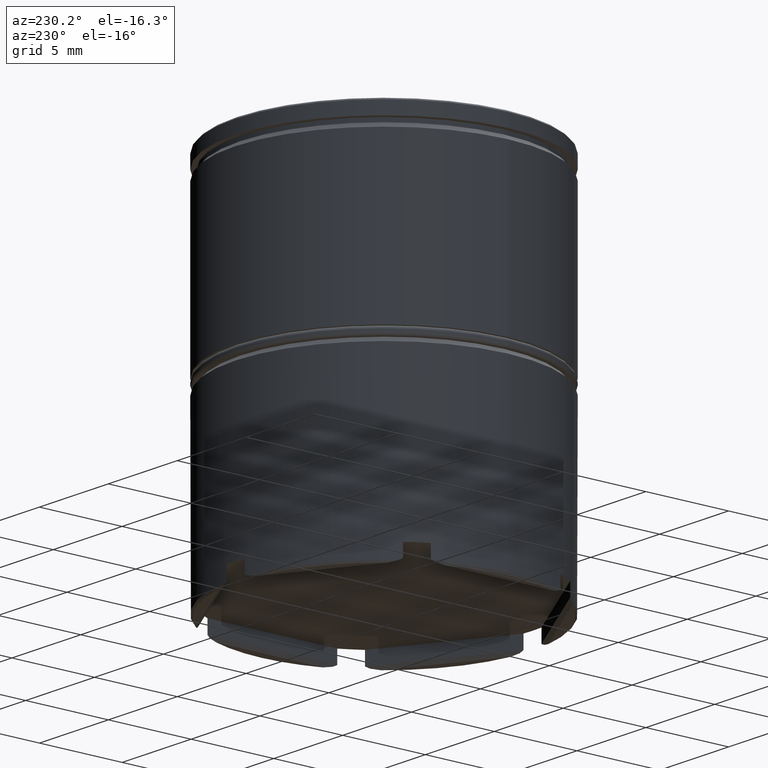
[diagram: clean part render]
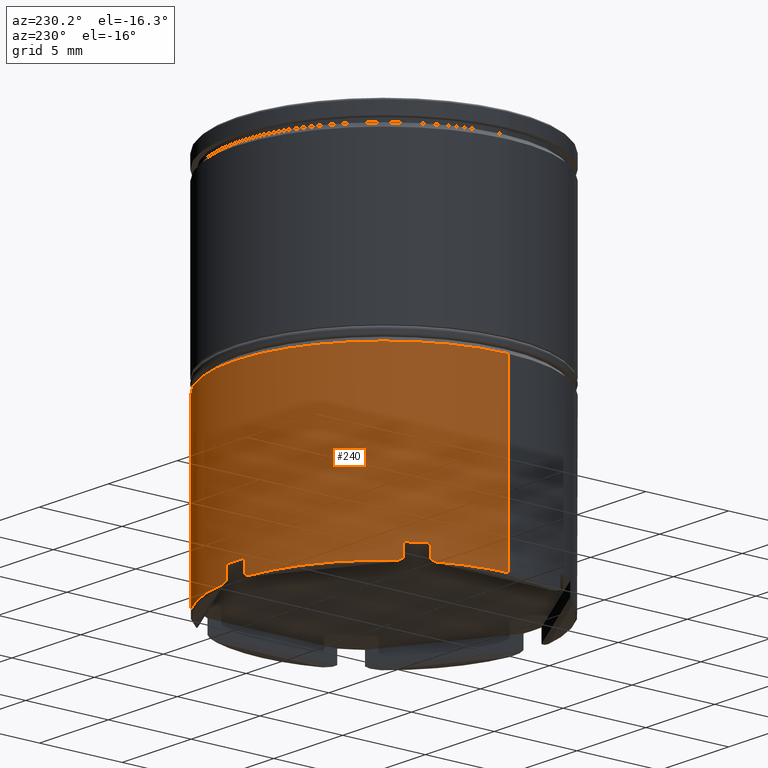
[diagram: same view with one face highlighted and labeled with its STEP entity id]
A machine part, auxiliary view. The second image highlights one B-rep face of the part: STEP entity #240.
In plain terms, the highlighted cylindrical surface (partial cylindrical patch) has radius 9 mm, axis along (-0, -0, 1).
Its self-contained STEP definition (entity closure, byte-faithful):
#3 = LINE ( 'NONE', #999, #1129 ) ;
#15 = LINE ( 'NONE', #1019, #1394 ) ;
#37 = LINE ( 'NONE', #1557, #1393 ) ;
#38 = CARTESIAN_POINT ( 'NONE',  ( -7.447425495871833334, 5.053301246060654783, 0.000000000000000000 ) ) ;
#41 = EDGE_CURVE ( 'NONE', #1512, #1438, #297, .T. ) ;
#42 = CARTESIAN_POINT ( 'NONE',  ( 8.167600284359950891, 3.781069297561905351, -22.36760028435994840 ) ) ;
#60 = CARTESIAN_POINT ( 'NONE',  ( 7.447425495871836887, 5.053301246060648566, -21.50000000000000000 ) ) ;
#67 = DIRECTION ( 'NONE',  ( -1.000000000000000000, 1.421085471520200372E-14, 0.000000000000000000 ) ) ;
#72 = VERTEX_POINT ( 'NONE', #783 ) ;
#81 = DIRECTION ( 'NONE',  ( -0.000000000000000000, -0.000000000000000000, 1.000000000000000000 ) ) ;
#92 = CARTESIAN_POINT ( 'NONE',  ( 0.000000000000000000, 0.000000000000000000, -22.40000000000000213 ) ) ;
#94 = EDGE_CURVE ( 'NONE', #1512, #1083, #943, .T. ) ;
#99 = DIRECTION ( 'NONE',  ( -1.000000000000000000, 0.000000000000000000, 0.000000000000000000 ) ) ;
#112 = ORIENTED_EDGE ( 'NONE', *, *, #1070, .T. ) ;
#127 = AXIS2_PLACEMENT_3D ( 'NONE', #575, #463, #1574 ) ;
#128 = CARTESIAN_POINT ( 'NONE',  ( 9.000000000000000000, 0.000000000000000000, -11.80000000000000249 ) ) ;
#133 = CARTESIAN_POINT ( 'NONE',  ( -0.6525745041281640901, 8.976310295247255766, -22.29999999999999361 ) ) ;
#139 = EDGE_CURVE ( 'NONE', #457, #959, #980, .T. ) ;
#145 = CARTESIAN_POINT ( 'NONE',  ( 8.199999999999999289, 3.709447398198280066, -22.40000000000000213 ) ) ;
#153 = CARTESIAN_POINT ( 'NONE',  ( 0.000000000000000000, 0.000000000000000000, 0.000000000000000000 ) ) ;
#154 = AXIS2_PLACEMENT_3D ( 'NONE', #424, #545, #171 ) ;
#155 = CIRCLE ( 'NONE', #1076, 9.000000000000000000 ) ;
#158 = EDGE_CURVE ( 'NONE', #457, #872, #155, .T. ) ;
#169 = EDGE_CURVE ( 'NONE', #867, #1595, #175, .T. ) ;
#171 = DIRECTION ( 'NONE',  ( -1.000000000000000000, -2.664535259100375303E-15, 0.000000000000000000 ) ) ;
#175 = CIRCLE ( 'NONE', #1051, 9.000000000000000000 ) ;
#181 = EDGE_CURVE ( 'NONE', #1074, #1083, #336, .T. ) ;
#184 = CARTESIAN_POINT ( 'NONE',  ( -7.358302207337953149, 5.182814685431787360, -22.36760028435994840 ) ) ;
#201 = VECTOR ( 'NONE', #756, 1000.000000000000000 ) ;
#228 = CARTESIAN_POINT ( 'NONE',  ( 7.403288052786542117, 5.118349875253747960, -22.33426504381993993 ) ) ;
#238 = CARTESIAN_POINT ( 'NONE',  ( -8.100000000000003197, 3.923009049186599206, -22.29999999999999716 ) ) ;
#240 = ADVANCED_FACE ( 'NONE', ( #255 ), #246, .T. ) ;
#243 = CARTESIAN_POINT ( 'NONE',  ( -0.6525745041281640901, 8.976310295247255766, 0.000000000000000000 ) ) ;
#246 = CYLINDRICAL_SURFACE ( 'NONE', #918, 9.000000000000000000 ) ;
#255 = FACE_OUTER_BOUND ( 'NONE', #1319, .T. ) ;
#257 = CARTESIAN_POINT ( 'NONE',  ( 8.100000000000001421, 3.923009049186602759, -22.30000000000000782 ) ) ;
#265 = ORIENTED_EDGE ( 'NONE', *, *, #772, .T. ) ;
#267 = CARTESIAN_POINT ( 'NONE',  ( 0.6525745041281636460, 8.976310295247255766, -21.50000000000000000 ) ) ;
#268 = VERTEX_POINT ( 'NONE', #543 ) ;
#279 = DIRECTION ( 'NONE',  ( -0.000000000000000000, -0.000000000000000000, 1.000000000000000000 ) ) ;
#281 = DIRECTION ( 'NONE',  ( 1.000000000000000000, 0.000000000000000000, 0.000000000000000000 ) ) ;
#290 =( BOUNDED_CURVE ( )  B_SPLINE_CURVE ( 3, ( #238, #1125, #503, #769 ),
 .UNSPECIFIED., .F., .T. ) 
 B_SPLINE_CURVE_WITH_KNOTS ( ( 4, 4 ),
 ( 2.690565841793531643, 2.716768226110907847 ),
 .UNSPECIFIED. ) 
 CURVE ( )  GEOMETRIC_REPRESENTATION_ITEM ( )  RATIONAL_B_SPLINE_CURVE ( ( 1.000000000000000000, 0.9999427870730221990, 0.9999427870730221990, 1.000000000000000000 ) ) 
 REPRESENTATION_ITEM ( '' )  );
#292 = EDGE_CURVE ( 'NONE', #1595, #959, #646, .T. ) ;
#297 = LINE ( 'NONE', #38, #360 ) ;
#298 = ORIENTED_EDGE ( 'NONE', *, *, #139, .F. ) ;
#299 = EDGE_CURVE ( 'NONE', #867, #459, #15, .T. ) ;
#303 =( BOUNDED_CURVE ( )  B_SPLINE_CURVE ( 3, ( #460, #184, #1594, #589 ),
 .UNSPECIFIED., .F., .T. ) 
 B_SPLINE_CURVE_WITH_KNOTS ( ( 4, 4 ),
 ( 3.566417081068677941, 3.592619465386055033 ),
 .UNSPECIFIED. ) 
 CURVE ( )  GEOMETRIC_REPRESENTATION_ITEM ( )  RATIONAL_B_SPLINE_CURVE ( ( 1.000000000000000000, 0.9999427870730221990, 0.9999427870730221990, 1.000000000000000000 ) ) 
 REPRESENTATION_ITEM ( '' )  );
#307 = DIRECTION ( 'NONE',  ( -0.000000000000000000, -0.000000000000000000, 1.000000000000000000 ) ) ;
#313 = ORIENTED_EDGE ( 'NONE', *, *, #843, .T. ) ;
#314 = CIRCLE ( 'NONE', #542, 9.000000000000000000 ) ;
#327 = AXIS2_PLACEMENT_3D ( 'NONE', #341, #81, #67 ) ;
#328 = AXIS2_PLACEMENT_3D ( 'NONE', #1310, #307, #454 ) ;
#331 = EDGE_CURVE ( 'NONE', #977, #825, #1419, .T. ) ;
#336 = LINE ( 'NONE', #1482, #1104 ) ;
#341 = CARTESIAN_POINT ( 'NONE',  ( 0.000000000000000000, 0.000000000000000000, -21.50000000000000000 ) ) ;
#360 = VECTOR ( 'NONE', #1567, 1000.000000000000000 ) ;
#379 = DIRECTION ( 'NONE',  ( -0.000000000000000000, -0.000000000000000000, 1.000000000000000000 ) ) ;
#389 = CARTESIAN_POINT ( 'NONE',  ( 0.000000000000000000, 0.000000000000000000, -21.50000000000000000 ) ) ;
#405 = CARTESIAN_POINT ( 'NONE',  ( 8.199999999999999289, 3.709447398198280066, -22.40000000000000213 ) ) ;
#424 = CARTESIAN_POINT ( 'NONE',  ( 0.000000000000000000, 0.000000000000000000, -22.40000000000000213 ) ) ;
#447 = CARTESIAN_POINT ( 'NONE',  ( -0.6525745041281640901, 8.976310295247255766, -22.29999999999999361 ) ) ;
#454 = DIRECTION ( 'NONE',  ( -1.000000000000000000, 0.000000000000000000, 0.000000000000000000 ) ) ;
#457 = VERTEX_POINT ( 'NONE', #494 ) ;
#459 = VERTEX_POINT ( 'NONE', #128 ) ;
#460 = CARTESIAN_POINT ( 'NONE',  ( -7.312475680841782122, 5.246684611933282838, -22.40000000000000213 ) ) ;
#463 = DIRECTION ( 'NONE',  ( -0.000000000000000000, -0.000000000000000000, 1.000000000000000000 ) ) ;
#468 = CIRCLE ( 'NONE', #154, 9.000000000000000000 ) ;
#472 = CARTESIAN_POINT ( 'NONE',  ( -0.8875243191582230518, 8.956132010131536703, -22.40000000000000213 ) ) ;
#488 = ORIENTED_EDGE ( 'NONE', *, *, #331, .T. ) ;
#493 = EDGE_CURVE ( 'NONE', #1074, #268, #290, .T. ) ;
#494 = CARTESIAN_POINT ( 'NONE',  ( 8.100000000000001421, 3.923009049186602759, -21.50000000000000000 ) ) ;
#503 = CARTESIAN_POINT ( 'NONE',  ( -8.167600284359959772, 3.781069297561888476, -22.36760028435994840 ) ) ;
#507 = EDGE_CURVE ( 'NONE', #72, #872, #3, .T. ) ;
#517 = ORIENTED_EDGE ( 'NONE', *, *, #299, .F. ) ;
#542 = AXIS2_PLACEMENT_3D ( 'NONE', #912, #1416, #281 ) ;
#543 = CARTESIAN_POINT ( 'NONE',  ( -8.200000000000009948, 3.709447398198260082, -22.40000000000000213 ) ) ;
#545 = DIRECTION ( 'NONE',  ( -0.000000000000000000, -0.000000000000000000, 1.000000000000000000 ) ) ;
#547 = DIRECTION ( 'NONE',  ( -0.000000000000000000, -0.000000000000000000, 1.000000000000000000 ) ) ;
#575 = CARTESIAN_POINT ( 'NONE',  ( 0.000000000000000000, 0.000000000000000000, -22.40000000000000213 ) ) ;
#588 = VERTEX_POINT ( 'NONE', #1116 ) ;
#589 = CARTESIAN_POINT ( 'NONE',  ( -7.447425495871833334, 5.053301246060654783, -22.29999999999999361 ) ) ;
#595 =( BOUNDED_CURVE ( )  B_SPLINE_CURVE ( 3, ( #732, #762, #1231, #614 ),
 .UNSPECIFIED., .F., .T. ) 
 B_SPLINE_CURVE_WITH_KNOTS ( ( 4, 4 ),
 ( 3.566417081068683270, 3.592619465386055477 ),
 .UNSPECIFIED. ) 
 CURVE ( )  GEOMETRIC_REPRESENTATION_ITEM ( )  RATIONAL_B_SPLINE_CURVE ( ( 1.000000000000000000, 0.9999427870730221990, 0.9999427870730221990, 1.000000000000000000 ) ) 
 REPRESENTATION_ITEM ( '' )  );
#601 = DIRECTION ( 'NONE',  ( -0.000000000000000000, -0.000000000000000000, 1.000000000000000000 ) ) ;
#609 = VERTEX_POINT ( 'NONE', #1383 ) ;
#614 = CARTESIAN_POINT ( 'NONE',  ( 0.6525745041281636460, 8.976310295247255766, -22.30000000000000782 ) ) ;
#646 =( BOUNDED_CURVE ( )  B_SPLINE_CURVE ( 3, ( #405, #42, #1532, #257 ),
 .UNSPECIFIED., .F., .T. ) 
 B_SPLINE_CURVE_WITH_KNOTS ( ( 4, 4 ),
 ( 3.566417081068681494, 3.592619465386055033 ),
 .UNSPECIFIED. ) 
 CURVE ( )  GEOMETRIC_REPRESENTATION_ITEM ( )  RATIONAL_B_SPLINE_CURVE ( ( 1.000000000000000000, 0.9999427870730221990, 0.9999427870730221990, 1.000000000000000000 ) ) 
 REPRESENTATION_ITEM ( '' )  );
#653 = VERTEX_POINT ( 'NONE', #267 ) ;
#694 = VECTOR ( 'NONE', #1117, 1000.000000000000000 ) ;
#709 = CARTESIAN_POINT ( 'NONE',  ( -0.8092980770219935227, 8.963883982993673172, -22.36760028435994840 ) ) ;
#719 = DIRECTION ( 'NONE',  ( -0.000000000000000000, -0.000000000000000000, 1.000000000000000000 ) ) ;
#726 = DIRECTION ( 'NONE',  ( 0.000000000000000000, 0.000000000000000000, -1.000000000000000000 ) ) ;
#729 = VERTEX_POINT ( 'NONE', #1055 ) ;
#732 = CARTESIAN_POINT ( 'NONE',  ( 0.8875243191581826396, 8.956132010131536703, -22.40000000000000213 ) ) ;
#735 = ORIENTED_EDGE ( 'NONE', *, *, #778, .T. ) ;
#756 = DIRECTION ( 'NONE',  ( -0.000000000000000000, -0.000000000000000000, 1.000000000000000000 ) ) ;
#762 = CARTESIAN_POINT ( 'NONE',  ( 0.8092980770219712072, 8.963883982993674948, -22.36760028435995196 ) ) ;
#764 = DIRECTION ( 'NONE',  ( -0.000000000000000000, -0.000000000000000000, 1.000000000000000000 ) ) ;
#769 = CARTESIAN_POINT ( 'NONE',  ( -8.200000000000009948, 3.709447398198260082, -22.40000000000000213 ) ) ;
#772 = EDGE_CURVE ( 'NONE', #776, #609, #1046, .T. ) ;
#776 = VERTEX_POINT ( 'NONE', #1460 ) ;
#778 = EDGE_CURVE ( 'NONE', #653, #588, #993, .T. ) ;
#783 = CARTESIAN_POINT ( 'NONE',  ( 7.447425495871836887, 5.053301246060648566, -22.30000000000000782 ) ) ;
#784 = DIRECTION ( 'NONE',  ( -1.000000000000000000, 0.000000000000000000, 0.000000000000000000 ) ) ;
#803 = CARTESIAN_POINT ( 'NONE',  ( 0.6525745041281636460, 8.976310295247255766, -22.30000000000000782 ) ) ;
#825 = VERTEX_POINT ( 'NONE', #852 ) ;
#833 = CARTESIAN_POINT ( 'NONE',  ( 8.100000000000001421, 3.923009049186602759, 0.000000000000000000 ) ) ;
#834 = CIRCLE ( 'NONE', #328, 9.000000000000000000 ) ;
#838 = AXIS2_PLACEMENT_3D ( 'NONE', #1349, #1122, #1502 ) ;
#843 = EDGE_CURVE ( 'NONE', #1399, #776, #1092, .T. ) ;
#852 = CARTESIAN_POINT ( 'NONE',  ( -9.000000000000000000, 1.102182119232617714E-15, -11.80000000000000249 ) ) ;
#867 = VERTEX_POINT ( 'NONE', #1203 ) ;
#872 = VERTEX_POINT ( 'NONE', #60 ) ;
#876 = LINE ( 'NONE', #243, #201 ) ;
#885 = ORIENTED_EDGE ( 'NONE', *, *, #1087, .F. ) ;
#891 = CARTESIAN_POINT ( 'NONE',  ( -9.000000000000000000, 1.102182119232617714E-15, -22.40000000000000213 ) ) ;
#901 = CARTESIAN_POINT ( 'NONE',  ( -8.100000000000003197, 3.923009049186599206, -21.50000000000000000 ) ) ;
#912 = CARTESIAN_POINT ( 'NONE',  ( 0.000000000000000000, 0.000000000000000000, -11.80000000000000249 ) ) ;
#918 = AXIS2_PLACEMENT_3D ( 'NONE', #153, #279, #1538 ) ;
#924 = CARTESIAN_POINT ( 'NONE',  ( -8.100000000000003197, 3.923009049186599206, -22.29999999999999716 ) ) ;
#935 = ORIENTED_EDGE ( 'NONE', *, *, #507, .F. ) ;
#943 = CIRCLE ( 'NONE', #838, 9.000000000000000000 ) ;
#959 = VERTEX_POINT ( 'NONE', #987 ) ;
#977 = VERTEX_POINT ( 'NONE', #891 ) ;
#980 = LINE ( 'NONE', #833, #1471 ) ;
#987 = CARTESIAN_POINT ( 'NONE',  ( 8.100000000000001421, 3.923009049186602759, -22.30000000000000782 ) ) ;
#992 = EDGE_CURVE ( 'NONE', #1236, #1115, #595, .T. ) ;
#993 = CIRCLE ( 'NONE', #327, 9.000000000000000000 ) ;
#999 = CARTESIAN_POINT ( 'NONE',  ( 7.447425495871836887, 5.053301246060648566, 0.000000000000000000 ) ) ;
#1003 = CARTESIAN_POINT ( 'NONE',  ( 7.358302207337974465, 5.182814685431758939, -22.36760028435995196 ) ) ;
#1014 = CARTESIAN_POINT ( 'NONE',  ( -7.447425495871833334, 5.053301246060654783, -21.50000000000000000 ) ) ;
#1019 = CARTESIAN_POINT ( 'NONE',  ( 9.000000000000000000, 0.000000000000000000, 0.000000000000000000 ) ) ;
#1020 = DIRECTION ( 'NONE',  ( 0.000000000000000000, 0.000000000000000000, -1.000000000000000000 ) ) ;
#1030 = EDGE_CURVE ( 'NONE', #1399, #588, #876, .T. ) ;
#1034 = EDGE_CURVE ( 'NONE', #72, #729, #1037, .T. ) ;
#1037 =( BOUNDED_CURVE ( )  B_SPLINE_CURVE ( 3, ( #1366, #228, #1003, #1510 ),
 .UNSPECIFIED., .F., .T. ) 
 B_SPLINE_CURVE_WITH_KNOTS ( ( 4, 4 ),
 ( 2.690565841793530755, 2.716768226110903406 ),
 .UNSPECIFIED. ) 
 CURVE ( )  GEOMETRIC_REPRESENTATION_ITEM ( )  RATIONAL_B_SPLINE_CURVE ( ( 1.000000000000000000, 0.9999427870730221990, 0.9999427870730221990, 1.000000000000000000 ) ) 
 REPRESENTATION_ITEM ( '' )  );
#1046 = CIRCLE ( 'NONE', #127, 9.000000000000000000 ) ;
#1051 = AXIS2_PLACEMENT_3D ( 'NONE', #92, #601, #99 ) ;
#1055 = CARTESIAN_POINT ( 'NONE',  ( 7.312475680841810544, 5.246684611933241982, -22.40000000000000213 ) ) ;
#1070 = EDGE_CURVE ( 'NONE', #268, #977, #468, .T. ) ;
#1074 = VERTEX_POINT ( 'NONE', #924 ) ;
#1076 = AXIS2_PLACEMENT_3D ( 'NONE', #389, #547, #784 ) ;
#1083 = VERTEX_POINT ( 'NONE', #901 ) ;
#1087 = EDGE_CURVE ( 'NONE', #653, #1115, #37, .T. ) ;
#1092 =( BOUNDED_CURVE ( )  B_SPLINE_CURVE ( 3, ( #447, #1449, #709, #472 ),
 .UNSPECIFIED., .F., .T. ) 
 B_SPLINE_CURVE_WITH_KNOTS ( ( 4, 4 ),
 ( 2.690565841793531199, 2.716768226110907403 ),
 .UNSPECIFIED. ) 
 CURVE ( )  GEOMETRIC_REPRESENTATION_ITEM ( )  RATIONAL_B_SPLINE_CURVE ( ( 1.000000000000000000, 0.9999427870730221990, 0.9999427870730221990, 1.000000000000000000 ) ) 
 REPRESENTATION_ITEM ( '' )  );
#1098 = CARTESIAN_POINT ( 'NONE',  ( 0.8875243191581826396, 8.956132010131536703, -22.40000000000000213 ) ) ;
#1104 = VECTOR ( 'NONE', #719, 1000.000000000000000 ) ;
#1115 = VERTEX_POINT ( 'NONE', #803 ) ;
#1116 = CARTESIAN_POINT ( 'NONE',  ( -0.6525745041281640901, 8.976310295247255766, -21.50000000000000000 ) ) ;
#1117 = DIRECTION ( 'NONE',  ( -0.000000000000000000, -0.000000000000000000, 1.000000000000000000 ) ) ;
#1122 = DIRECTION ( 'NONE',  ( -0.000000000000000000, -0.000000000000000000, 1.000000000000000000 ) ) ;
#1125 = CARTESIAN_POINT ( 'NONE',  ( -8.134265043819940644, 3.852260587620083498, -22.33426504381992928 ) ) ;
#1129 = VECTOR ( 'NONE', #764, 1000.000000000000000 ) ;
#1140 = ORIENTED_EDGE ( 'NONE', *, *, #992, .T. ) ;
#1203 = CARTESIAN_POINT ( 'NONE',  ( 9.000000000000000000, 0.000000000000000000, -22.40000000000000213 ) ) ;
#1206 = ORIENTED_EDGE ( 'NONE', *, *, #1034, .T. ) ;
#1210 = ORIENTED_EDGE ( 'NONE', *, *, #1259, .T. ) ;
#1217 = EDGE_CURVE ( 'NONE', #609, #1438, #303, .T. ) ;
#1219 = ORIENTED_EDGE ( 'NONE', *, *, #158, .T. ) ;
#1231 = CARTESIAN_POINT ( 'NONE',  ( 0.7309769910333904219, 8.970610462873850111, -22.33426504381993638 ) ) ;
#1236 = VERTEX_POINT ( 'NONE', #1098 ) ;
#1259 = EDGE_CURVE ( 'NONE', #729, #1236, #834, .T. ) ;
#1270 = CARTESIAN_POINT ( 'NONE',  ( -9.000000000000000000, 1.102182119232617714E-15, 0.000000000000000000 ) ) ;
#1273 = ORIENTED_EDGE ( 'NONE', *, *, #1611, .T. ) ;
#1296 = ORIENTED_EDGE ( 'NONE', *, *, #94, .T. ) ;
#1310 = CARTESIAN_POINT ( 'NONE',  ( 0.000000000000000000, 0.000000000000000000, -22.40000000000000213 ) ) ;
#1319 = EDGE_LOOP ( 'NONE', ( #112, #488, #1273, #517, #1332, #1353, #298, #1219, #935, #1206, #1210, #1140, #885, #735, #1406, #313, #265, #1350, #1470, #1296, #1431, #1402 ) ) ;
#1332 = ORIENTED_EDGE ( 'NONE', *, *, #169, .T. ) ;
#1349 = CARTESIAN_POINT ( 'NONE',  ( 0.000000000000000000, 0.000000000000000000, -21.50000000000000000 ) ) ;
#1350 = ORIENTED_EDGE ( 'NONE', *, *, #1217, .T. ) ;
#1353 = ORIENTED_EDGE ( 'NONE', *, *, #292, .T. ) ;
#1366 = CARTESIAN_POINT ( 'NONE',  ( 7.447425495871836887, 5.053301246060648566, -22.30000000000000782 ) ) ;
#1383 = CARTESIAN_POINT ( 'NONE',  ( -7.312475680841782122, 5.246684611933282838, -22.40000000000000213 ) ) ;
#1393 = VECTOR ( 'NONE', #1020, 1000.000000000000000 ) ;
#1394 = VECTOR ( 'NONE', #379, 1000.000000000000000 ) ;
#1399 = VERTEX_POINT ( 'NONE', #133 ) ;
#1402 = ORIENTED_EDGE ( 'NONE', *, *, #493, .T. ) ;
#1406 = ORIENTED_EDGE ( 'NONE', *, *, #1030, .F. ) ;
#1416 = DIRECTION ( 'NONE',  ( 0.000000000000000000, 0.000000000000000000, -1.000000000000000000 ) ) ;
#1419 = LINE ( 'NONE', #1270, #694 ) ;
#1431 = ORIENTED_EDGE ( 'NONE', *, *, #181, .F. ) ;
#1438 = VERTEX_POINT ( 'NONE', #1476 ) ;
#1449 = CARTESIAN_POINT ( 'NONE',  ( -0.7309769910334018572, 8.970610462873848334, -22.33426504381992928 ) ) ;
#1460 = CARTESIAN_POINT ( 'NONE',  ( -0.8875243191582230518, 8.956132010131536703, -22.40000000000000213 ) ) ;
#1470 = ORIENTED_EDGE ( 'NONE', *, *, #41, .F. ) ;
#1471 = VECTOR ( 'NONE', #726, 1000.000000000000000 ) ;
#1476 = CARTESIAN_POINT ( 'NONE',  ( -7.447425495871833334, 5.053301246060654783, -22.29999999999999361 ) ) ;
#1482 = CARTESIAN_POINT ( 'NONE',  ( -8.100000000000003197, 3.923009049186599206, 0.000000000000000000 ) ) ;
#1502 = DIRECTION ( 'NONE',  ( -1.000000000000000000, 0.000000000000000000, 0.000000000000000000 ) ) ;
#1510 = CARTESIAN_POINT ( 'NONE',  ( 7.312475680841810544, 5.246684611933241982, -22.40000000000000213 ) ) ;
#1512 = VERTEX_POINT ( 'NONE', #1014 ) ;
#1532 = CARTESIAN_POINT ( 'NONE',  ( 8.134265043819933538, 3.852260587620092824, -22.33426504381993993 ) ) ;
#1538 = DIRECTION ( 'NONE',  ( 1.000000000000000000, 0.000000000000000000, 0.000000000000000000 ) ) ;
#1557 = CARTESIAN_POINT ( 'NONE',  ( 0.6525745041281636460, 8.976310295247255766, 0.000000000000000000 ) ) ;
#1567 = DIRECTION ( 'NONE',  ( 0.000000000000000000, 0.000000000000000000, -1.000000000000000000 ) ) ;
#1574 = DIRECTION ( 'NONE',  ( -1.000000000000000000, 8.881784197001252323E-16, 0.000000000000000000 ) ) ;
#1594 = CARTESIAN_POINT ( 'NONE',  ( -7.403288052786527906, 5.118349875253765724, -22.33426504381992928 ) ) ;
#1595 = VERTEX_POINT ( 'NONE', #145 ) ;
#1611 = EDGE_CURVE ( 'NONE', #825, #459, #314, .T. ) ;